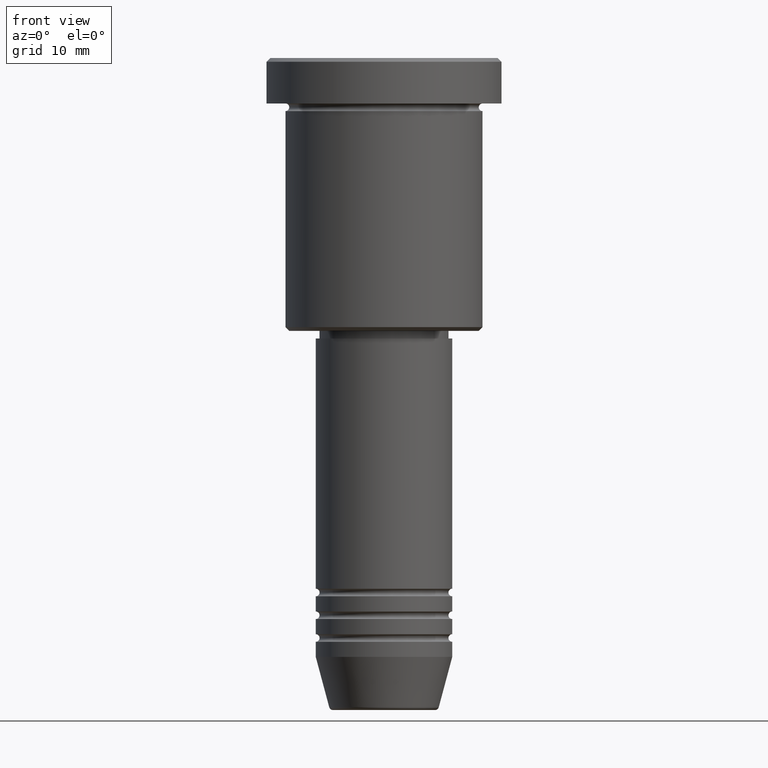
[diagram: clean part render]
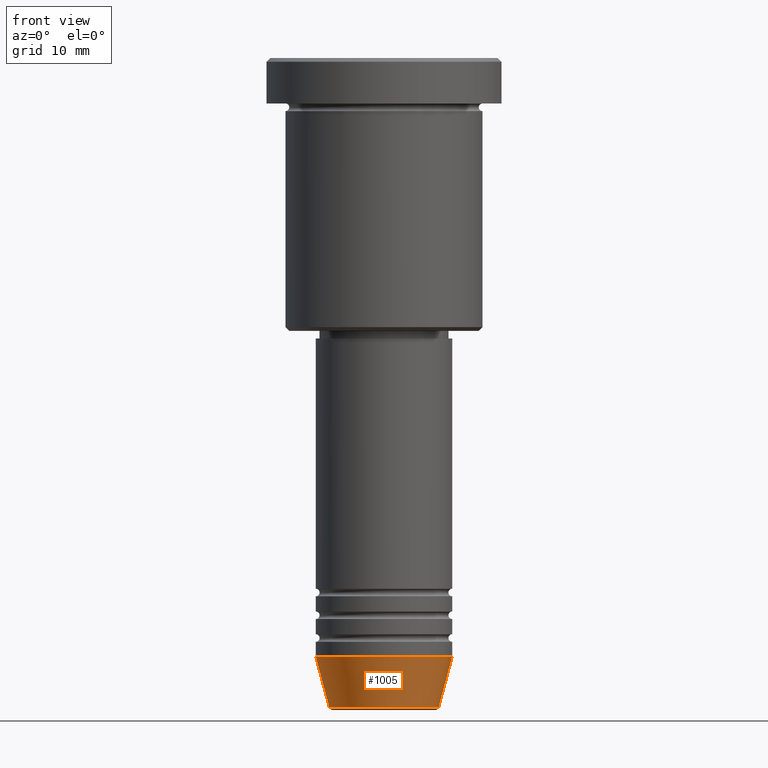
[diagram: same view with one face highlighted and labeled with its STEP entity id]
A machine part, front view. The second image highlights one B-rep face of the part: STEP entity #1005.
In plain terms, the highlighted conical surface has half-angle 15 deg.
Its self-contained STEP definition (entity closure, byte-faithful):
#86 = AXIS2_PLACEMENT_3D ( 'NONE', #673, #837, #930 ) ;
#95 = AXIS2_PLACEMENT_3D ( 'NONE', #542, #264, #624 ) ;
#109 = CONICAL_SURFACE ( 'NONE', #424, 9.000000000000000000, 0.2617993877991500740 ) ;
#124 = EDGE_CURVE ( 'NONE', #774, #828, #446, .T. ) ;
#133 = LINE ( 'NONE', #419, #338 ) ;
#239 = LINE ( 'NONE', #1126, #891 ) ;
#240 = ORIENTED_EDGE ( 'NONE', *, *, #438, .F. ) ;
#264 = DIRECTION ( 'NONE',  ( -0.000000000000000000, -0.000000000000000000, 1.000000000000000000 ) ) ;
#320 = ORIENTED_EDGE ( 'NONE', *, *, #124, .F. ) ;
#326 = CIRCLE ( 'NONE', #86, 7.223655072137193045 ) ;
#338 = VECTOR ( 'NONE', #781, 1000.000000000000000 ) ;
#360 = DIRECTION ( 'NONE',  ( 1.000000000000000000, 0.000000000000000000, 0.000000000000000000 ) ) ;
#389 = ORIENTED_EDGE ( 'NONE', *, *, #849, .T. ) ;
#419 = CARTESIAN_POINT ( 'NONE',  ( 9.000000000000000000, 0.000000000000000000, -79.00000000000000000 ) ) ;
#420 = ORIENTED_EDGE ( 'NONE', *, *, #485, .T. ) ;
#424 = AXIS2_PLACEMENT_3D ( 'NONE', #917, #836, #360 ) ;
#438 = EDGE_CURVE ( 'NONE', #1165, #774, #239, .T. ) ;
#446 = CIRCLE ( 'NONE', #95, 9.000000000000000000 ) ;
#485 = EDGE_CURVE ( 'NONE', #643, #828, #133, .T. ) ;
#542 = CARTESIAN_POINT ( 'NONE',  ( 0.000000000000000000, 0.000000000000000000, -79.00000000000000000 ) ) ;
#560 = EDGE_LOOP ( 'NONE', ( #240, #389, #420, #320 ) ) ;
#624 = DIRECTION ( 'NONE',  ( 1.000000000000000000, 0.000000000000000000, 0.000000000000000000 ) ) ;
#643 = VERTEX_POINT ( 'NONE', #1086 ) ;
#649 = FACE_OUTER_BOUND ( 'NONE', #560, .T. ) ;
#673 = CARTESIAN_POINT ( 'NONE',  ( 0.000000000000000000, 0.000000000000000000, -85.62940952255124216 ) ) ;
#677 = CARTESIAN_POINT ( 'NONE',  ( -7.223655072137193045, 9.934123627281767082E-16, -85.62940952255124216 ) ) ;
#685 = CARTESIAN_POINT ( 'NONE',  ( 9.000000000000000000, 0.000000000000000000, -79.00000000000000000 ) ) ;
#766 = CARTESIAN_POINT ( 'NONE',  ( -9.000000000000000000, 1.102182119232617714E-15, -79.00000000000000000 ) ) ;
#774 = VERTEX_POINT ( 'NONE', #766 ) ;
#781 = DIRECTION ( 'NONE',  ( 0.2588190451025213501, 0.000000000000000000, 0.9659258262890680902 ) ) ;
#828 = VERTEX_POINT ( 'NONE', #685 ) ;
#836 = DIRECTION ( 'NONE',  ( -0.000000000000000000, -0.000000000000000000, 1.000000000000000000 ) ) ;
#837 = DIRECTION ( 'NONE',  ( -0.000000000000000000, -0.000000000000000000, 1.000000000000000000 ) ) ;
#849 = EDGE_CURVE ( 'NONE', #1165, #643, #326, .T. ) ;
#891 = VECTOR ( 'NONE', #961, 1000.000000000000000 ) ;
#917 = CARTESIAN_POINT ( 'NONE',  ( 0.000000000000000000, 0.000000000000000000, -79.00000000000000000 ) ) ;
#930 = DIRECTION ( 'NONE',  ( 1.000000000000000000, 0.000000000000000000, 0.000000000000000000 ) ) ;
#961 = DIRECTION ( 'NONE',  ( -0.2588190451025213501, 3.169619151431772337E-17, 0.9659258262890680902 ) ) ;
#1005 = ADVANCED_FACE ( 'NONE', ( #649 ), #109, .T. ) ;
#1086 = CARTESIAN_POINT ( 'NONE',  ( 7.223655072137193045, 0.000000000000000000, -85.62940952255124216 ) ) ;
#1126 = CARTESIAN_POINT ( 'NONE',  ( -9.000000000000000000, 1.102182119232617714E-15, -79.00000000000000000 ) ) ;
#1165 = VERTEX_POINT ( 'NONE', #677 ) ;